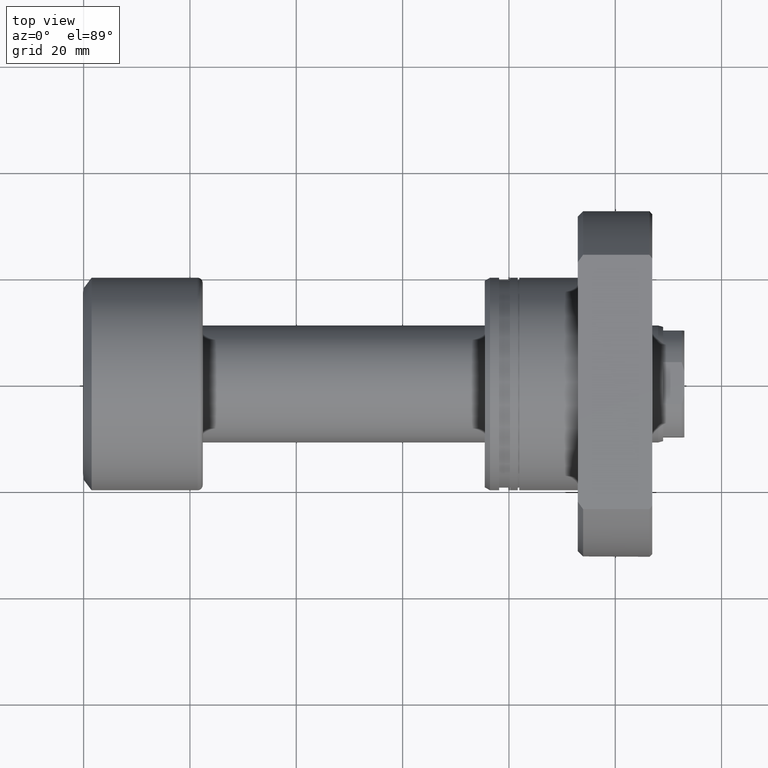
[diagram: clean part render]
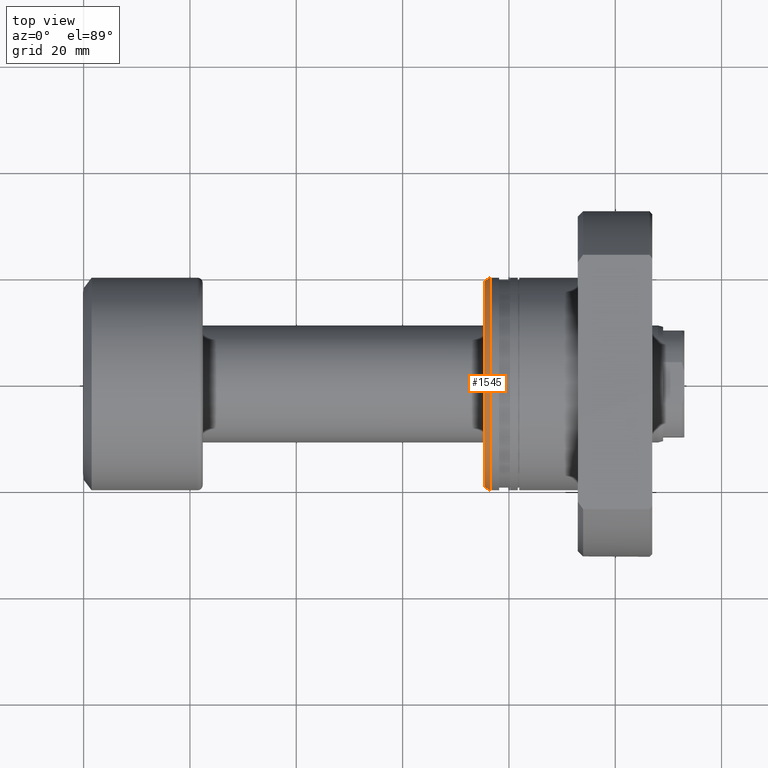
[diagram: same view with one face highlighted and labeled with its STEP entity id]
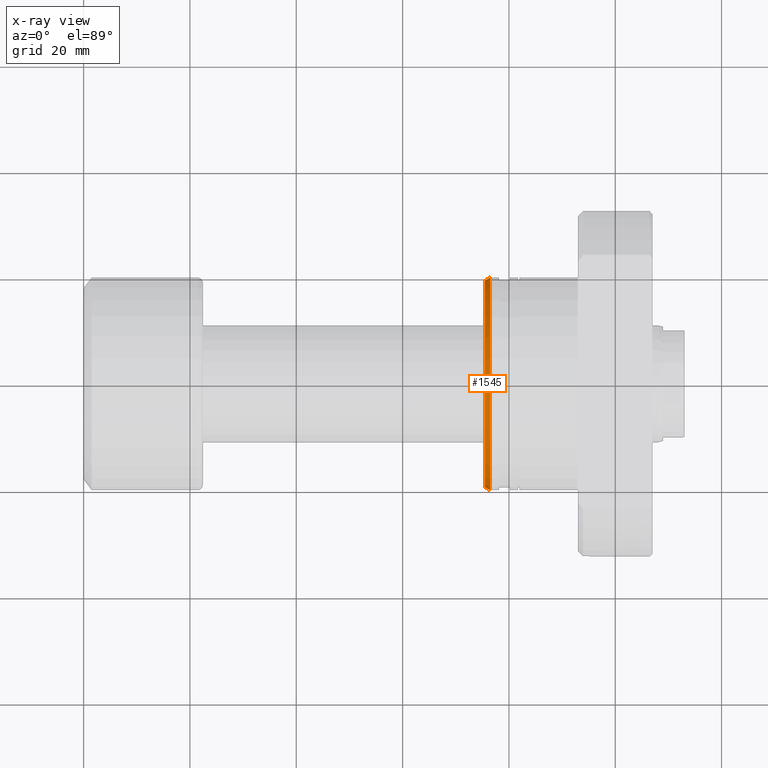
[diagram: x-ray of the same camera — body ghosted, the highlighted face saturated]
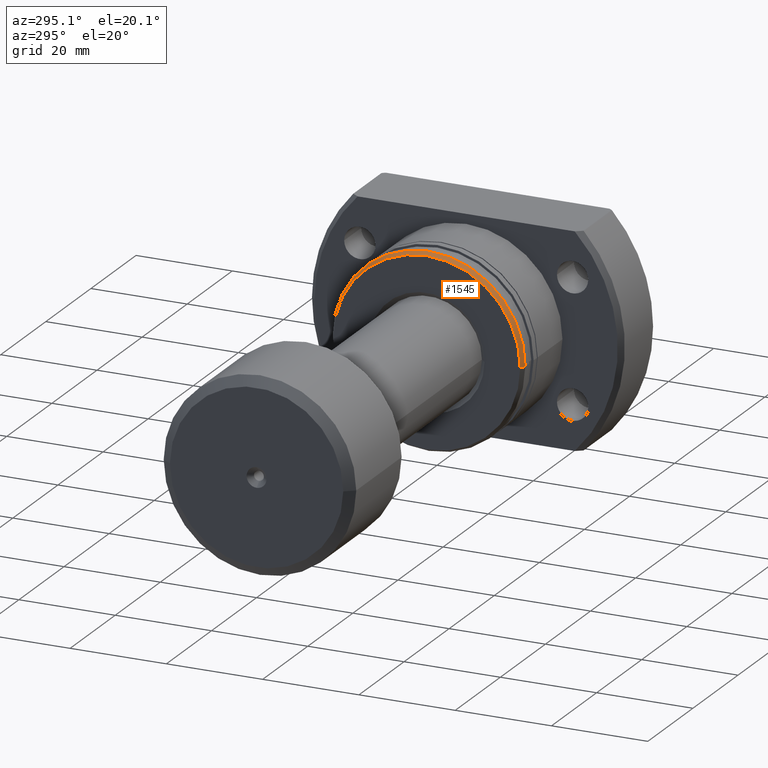
[diagram: same view with one face highlighted and labeled with its STEP entity id]
A machine part, top view. The second image highlights one B-rep face of the part: STEP entity #1545.
The next image is the same camera in x-ray: the body ghosted, the highlighted face saturated — about 0% of this face is hidden behind the body in this view.
A second angle (auxiliary view) of the same face is appended — the face is thin or edge-on in the first view.
In plain terms, the highlighted conical surface has half-angle 30 deg.
Its self-contained STEP definition (entity closure, byte-faithful):
#7 = CIRCLE ( 'NONE', #1934, 19.99999999999999645 ) ;
#75 = VECTOR ( 'NONE', #284, 1000.000000000000227 ) ;
#204 = FACE_OUTER_BOUND ( 'NONE', #2169, .T. ) ;
#284 = DIRECTION ( 'NONE',  ( 0.8660254037843920782, -0.5000000000000806022, 6.123233995737753345E-17 ) ) ;
#419 = VECTOR ( 'NONE', #3017, 1000.000000000000227 ) ;
#545 = LINE ( 'NONE', #2032, #419 ) ;
#598 = VERTEX_POINT ( 'NONE', #1936 ) ;
#782 = EDGE_CURVE ( 'NONE', #799, #1477, #1697, .T. ) ;
#783 = ORIENTED_EDGE ( 'NONE', *, *, #2054, .F. ) ;
#799 = VERTEX_POINT ( 'NONE', #2455 ) ;
#983 = CARTESIAN_POINT ( 'NONE',  ( 0.000000000000000000, 0.000000000000000000, 0.000000000000000000 ) ) ;
#1015 = DIRECTION ( 'NONE',  ( 1.000000000000000000, 2.721437331438560389E-17, -0.000000000000000000 ) ) ;
#1283 = ORIENTED_EDGE ( 'NONE', *, *, #1443, .T. ) ;
#1319 = AXIS2_PLACEMENT_3D ( 'NONE', #2242, #1015, #2003 ) ;
#1332 = ORIENTED_EDGE ( 'NONE', *, *, #2792, .F. ) ;
#1389 = DIRECTION ( 'NONE',  ( 1.000000000000000000, 2.721437331438560389E-17, -0.000000000000000000 ) ) ;
#1443 = EDGE_CURVE ( 'NONE', #1477, #598, #1709, .T. ) ;
#1454 = CARTESIAN_POINT ( 'NONE',  ( 5.285752405288245154E-16, -19.42264973081037027, 2.378588582379712242E-15 ) ) ;
#1477 = VERTEX_POINT ( 'NONE', #1989 ) ;
#1537 = DIRECTION ( 'NONE',  ( -2.721437331438560697E-17, 1.000000000000000000, 0.000000000000000000 ) ) ;
#1545 = ADVANCED_FACE ( 'NONE', ( #204 ), #2683, .T. ) ;
#1580 = ORIENTED_EDGE ( 'NONE', *, *, #782, .T. ) ;
#1649 = VERTEX_POINT ( 'NONE', #2521 ) ;
#1697 = CIRCLE ( 'NONE', #1319, 19.42264973081037027 ) ;
#1709 = LINE ( 'NONE', #1454, #75 ) ;
#1797 = DIRECTION ( 'NONE',  ( 1.000000000000000000, 2.721437331438560389E-17, -0.000000000000000000 ) ) ;
#1934 = AXIS2_PLACEMENT_3D ( 'NONE', #2374, #1389, #2181 ) ;
#1936 = CARTESIAN_POINT ( 'NONE',  ( 0.9999999999997861710, -19.99999999999999645, 2.449293598294706119E-15 ) ) ;
#1989 = CARTESIAN_POINT ( 'NONE',  ( 5.285752405288245154E-16, -19.42264973081037027, 2.413941090337209377E-15 ) ) ;
#2003 = DIRECTION ( 'NONE',  ( -2.721437331438560697E-17, 1.000000000000000000, 0.000000000000000000 ) ) ;
#2032 = CARTESIAN_POINT ( 'NONE',  ( -5.285752405288245154E-16, 19.42264973081037027, 0.000000000000000000 ) ) ;
#2054 = EDGE_CURVE ( 'NONE', #799, #1649, #545, .T. ) ;
#2169 = EDGE_LOOP ( 'NONE', ( #1580, #1283, #1332, #783 ) ) ;
#2181 = DIRECTION ( 'NONE',  ( -3.252606517456513918E-17, 1.000000000000000000, 0.000000000000000000 ) ) ;
#2242 = CARTESIAN_POINT ( 'NONE',  ( 0.000000000000000000, 0.000000000000000000, 0.000000000000000000 ) ) ;
#2374 = CARTESIAN_POINT ( 'NONE',  ( 0.9999999999997857270, 2.721437331437974598E-17, 0.000000000000000000 ) ) ;
#2455 = CARTESIAN_POINT ( 'NONE',  ( -5.285752405288245154E-16, 19.42264973081037027, 0.000000000000000000 ) ) ;
#2521 = CARTESIAN_POINT ( 'NONE',  ( 0.9999999999997853939, 19.99999999999999645, 0.000000000000000000 ) ) ;
#2683 = CONICAL_SURFACE ( 'NONE', #2831, 19.42264973081037027, 0.5235987755983919634 ) ;
#2792 = EDGE_CURVE ( 'NONE', #1649, #598, #7, .T. ) ;
#2831 = AXIS2_PLACEMENT_3D ( 'NONE', #983, #1797, #1537 ) ;
#3017 = DIRECTION ( 'NONE',  ( 0.8660254037843920782, 0.5000000000000806022, 0.000000000000000000 ) ) ;